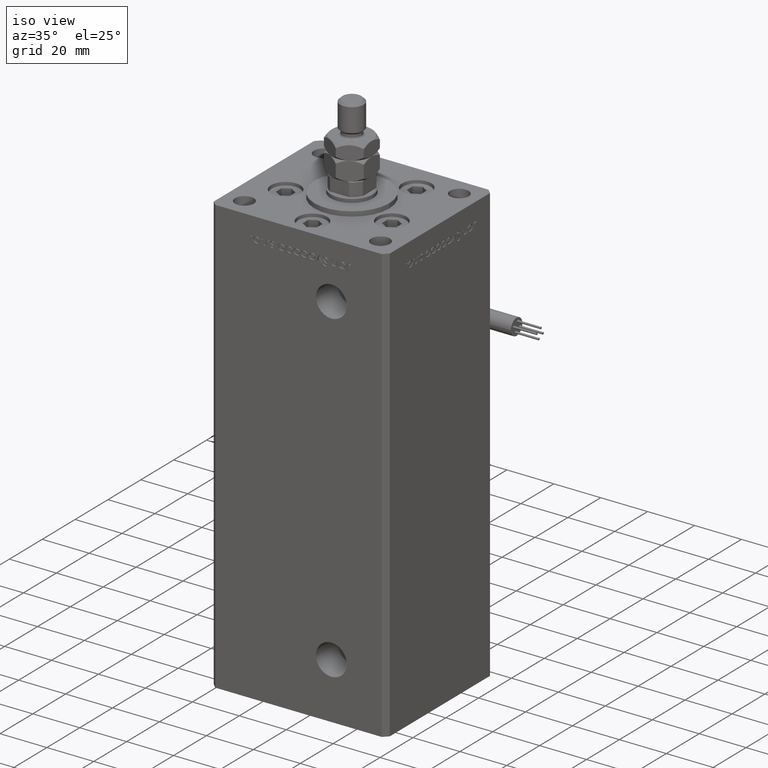
[diagram: clean part render]
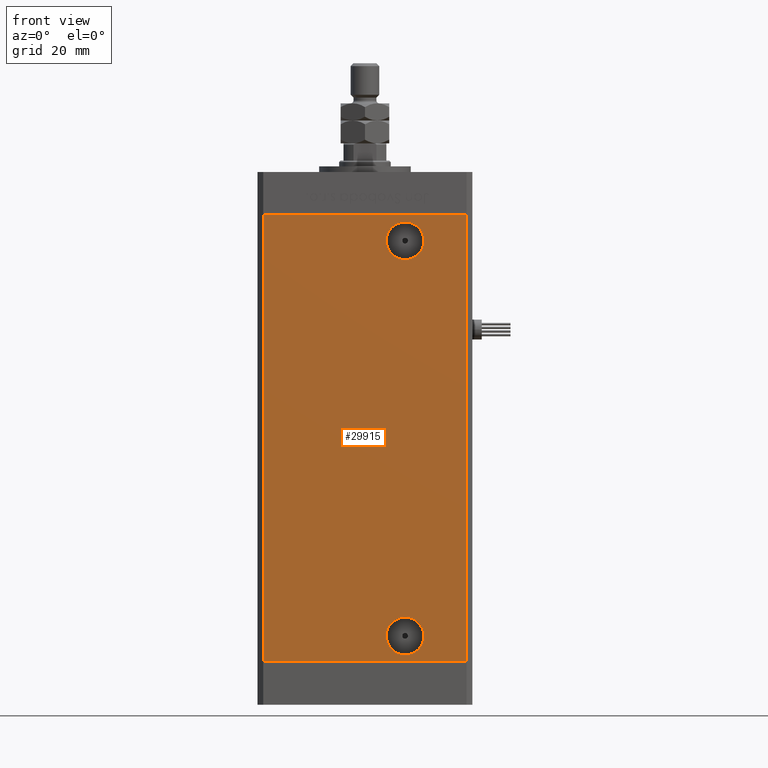
[diagram: tour spotlight — one face highlighted and labeled with its STEP entity id]
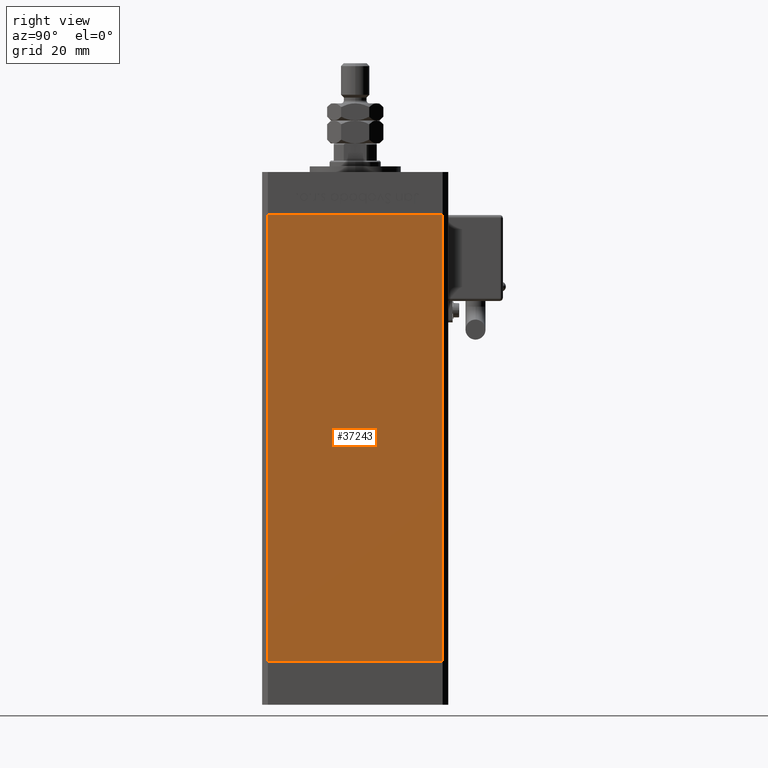
[diagram: tour spotlight — one face highlighted and labeled with its STEP entity id]
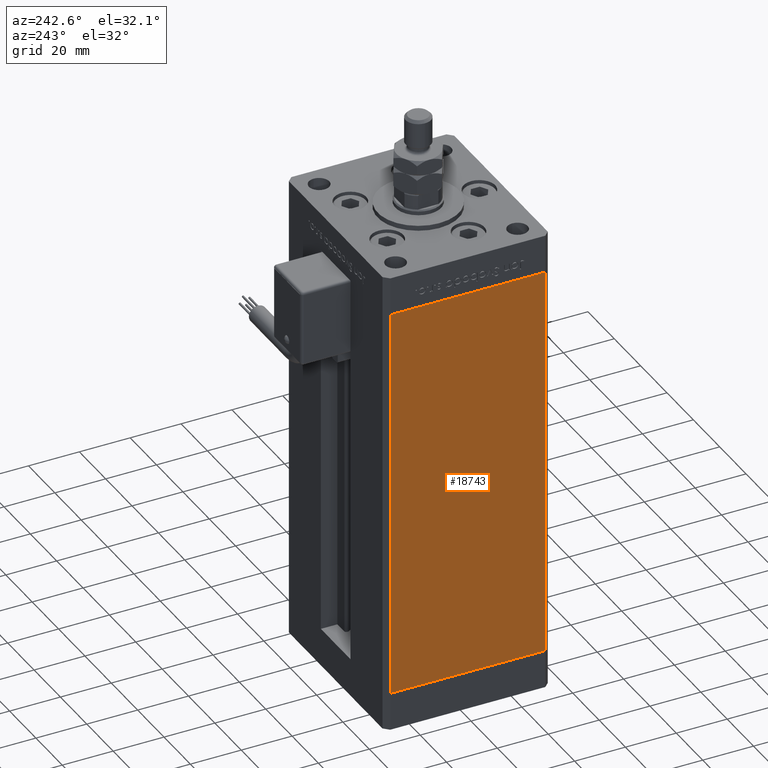
[diagram: tour spotlight — one face highlighted and labeled with its STEP entity id]
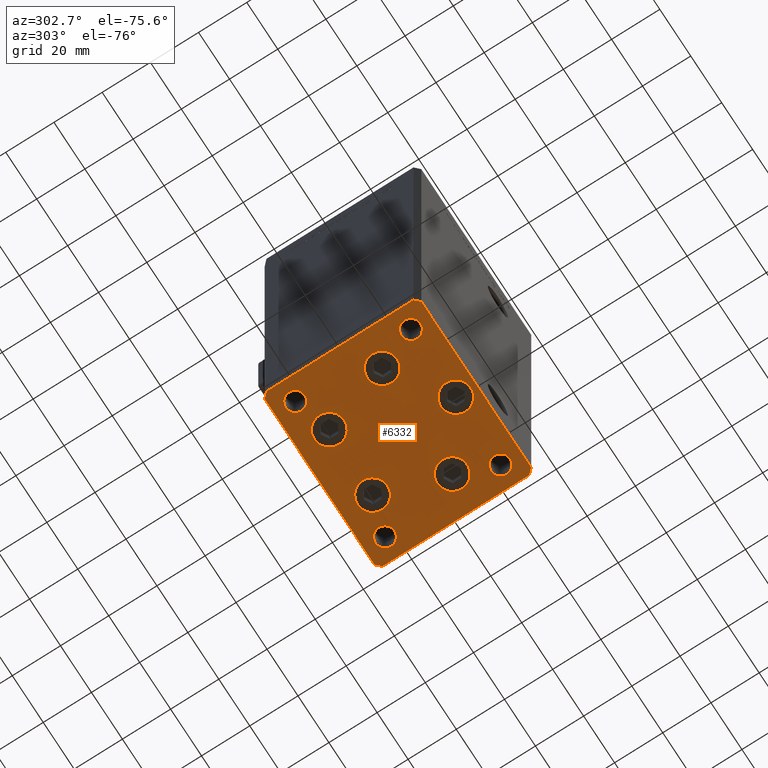
[diagram: tour spotlight — one face highlighted and labeled with its STEP entity id]
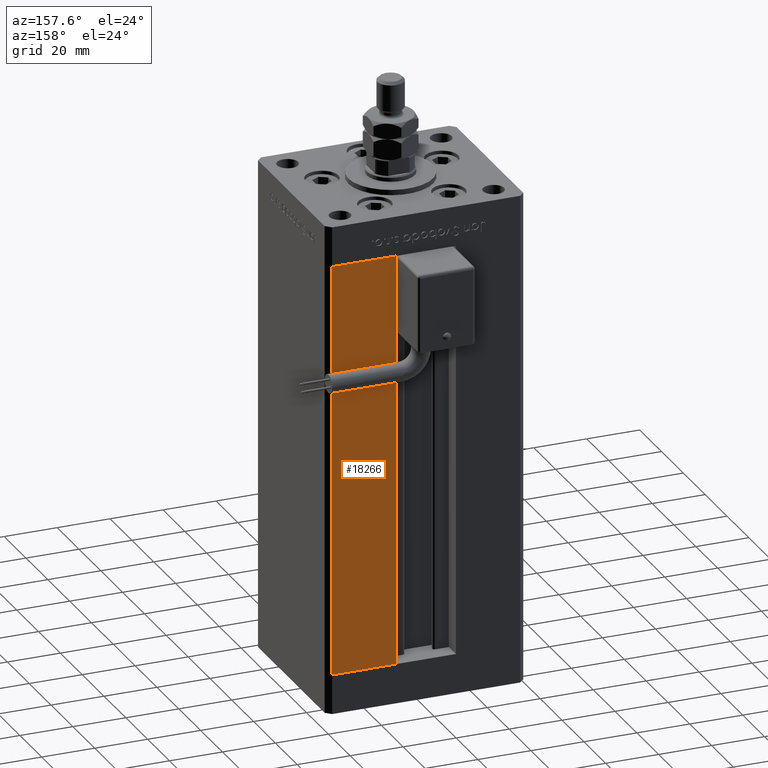
[diagram: tour spotlight — one face highlighted and labeled with its STEP entity id]
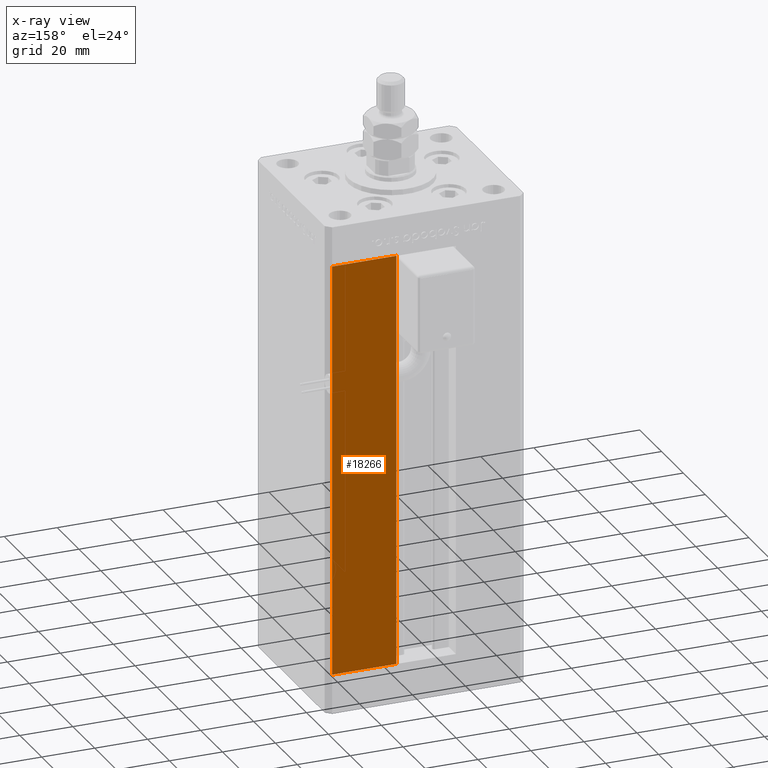
[diagram: x-ray of the same camera — body ghosted, this tour face saturated]
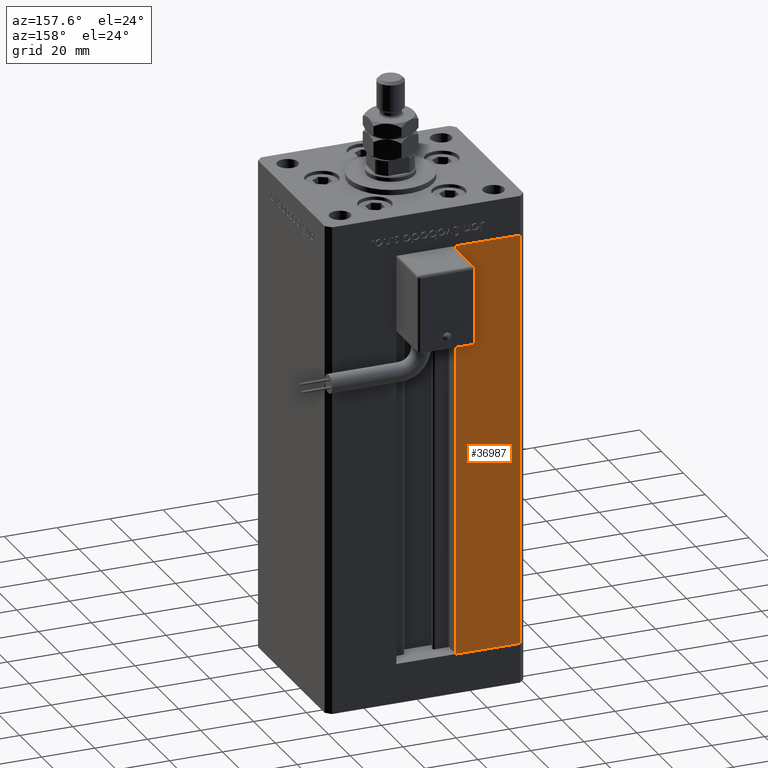
[diagram: tour spotlight — one face highlighted and labeled with its STEP entity id]
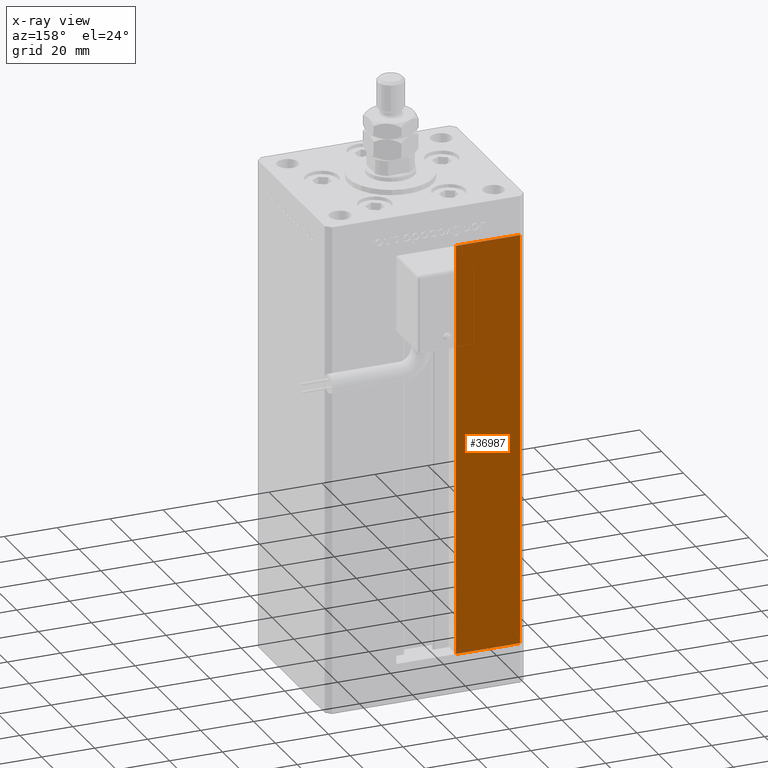
[diagram: x-ray of the same camera — body ghosted, this tour face saturated]
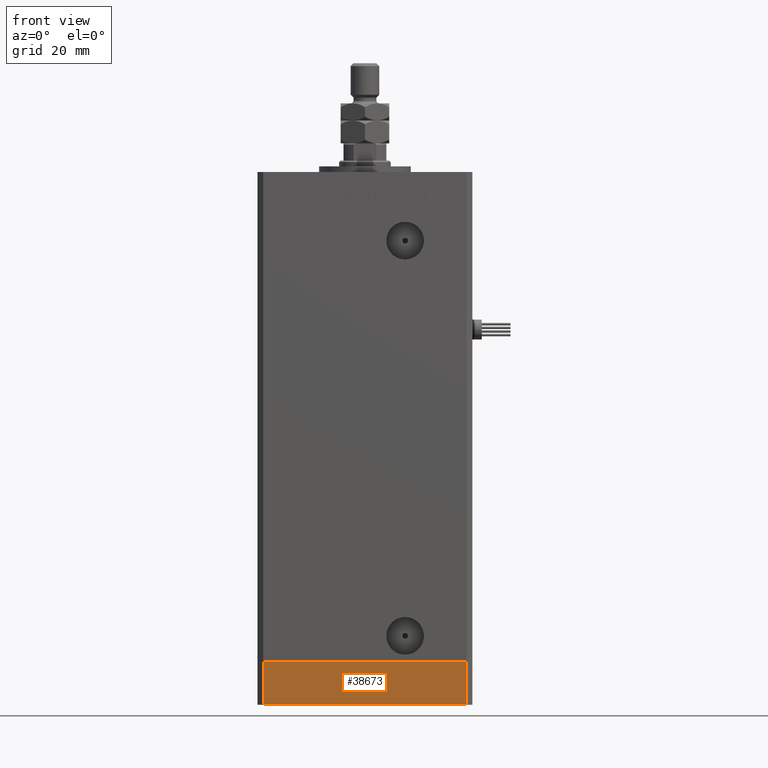
[diagram: tour spotlight — one face highlighted and labeled with its STEP entity id]
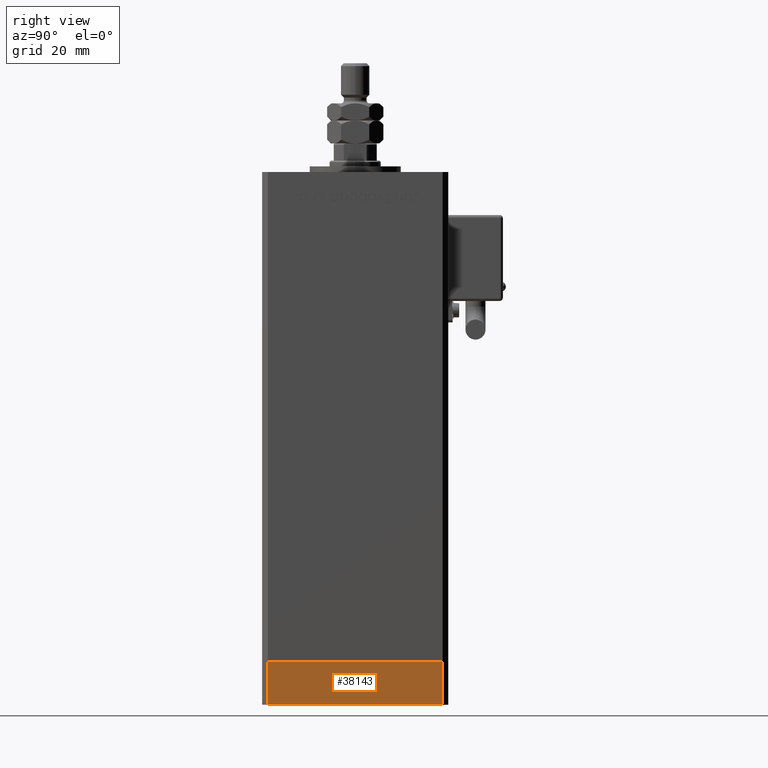
[diagram: tour spotlight — one face highlighted and labeled with its STEP entity id]
A machine part: a face-by-face anatomy tour. The part has 1334 B-rep faces; the first image is the clean iso view, then the 8 largest visible faces are spotlighted one at a time (largest first), each with its STEP entity span.

Face 1 — front view, entity #29915. In plain terms, the highlighted planar face has unit normal (0, 1, 0).
Definition (entity closure, byte-faithful):
#817 = AXIS2_PLACEMENT_3D ( 'NONE', #55035, #27536, #14600 ) ;
#1549 = VERTEX_POINT ( 'NONE', #44508 ) ;
#1891 = CARTESIAN_POINT ( 'NONE',  ( 13.99999999999997513, -32.50000000000000000, 140.4200000000000159 ) ) ;
#1982 = CARTESIAN_POINT ( 'NONE',  ( -35.49999999999999289, -32.50000000000000000, 156.0000000000000000 ) ) ;
#2479 = VERTEX_POINT ( 'NONE', #47945 ) ;
#2536 = FACE_OUTER_BOUND ( 'NONE', #17099, .T. ) ;
#2798 = LINE ( 'NONE', #10830, #24744 ) ;
#3021 = EDGE_CURVE ( 'NONE', #44574, #39022, #2798, .T. ) ;
#3028 = CARTESIAN_POINT ( 'NONE',  ( -35.49999999999999289, -32.50000000000000000, 0.000000000000000000 ) ) ;
#3066 = ORIENTED_EDGE ( 'NONE', *, *, #13359, .T. ) ;
#3118 = VECTOR ( 'NONE', #56709, 1000.000000000000000 ) ;
#3571 = CARTESIAN_POINT ( 'NONE',  ( 35.49999999999999289, -32.50000000000000000, 156.0000000000000000 ) ) ;
#3935 = CIRCLE ( 'NONE', #34148, 6.579999999999998295 ) ;
#3950 = CARTESIAN_POINT ( 'NONE',  ( -35.49999999999999289, -32.50000000000000000, 156.0000000000000000 ) ) ;
#4577 = CARTESIAN_POINT ( 'NONE',  ( 13.99999999999999112, -32.50000000000000000, 15.58000000000000718 ) ) ;
#5752 = AXIS2_PLACEMENT_3D ( 'NONE', #17000, #43106, #56303 ) ;
#6574 = CARTESIAN_POINT ( 'NONE',  ( 13.99999999999999112, -32.50000000000000000, 9.000000000000007105 ) ) ;
#9158 = EDGE_CURVE ( 'NONE', #19921, #51169, #3935, .T. ) ;
#10552 = DIRECTION ( 'NONE',  ( -0.000000000000000000, -0.000000000000000000, -1.000000000000000000 ) ) ;
#10598 = ORIENTED_EDGE ( 'NONE', *, *, #38749, .T. ) ;
#10830 = CARTESIAN_POINT ( 'NONE',  ( 35.49999999999999289, -32.50000000000000000, 156.0000000000000000 ) ) ;
#10858 = PLANE ( 'NONE',  #817 ) ;
#11431 = DIRECTION ( 'NONE',  ( 0.000000000000000000, -1.000000000000000000, 0.000000000000000000 ) ) ;
#13359 = EDGE_CURVE ( 'NONE', #30774, #1549, #40811, .T. ) ;
#13890 = EDGE_LOOP ( 'NONE', ( #42626, #10598 ) ) ;
#14600 = DIRECTION ( 'NONE',  ( 0.000000000000000000, -0.000000000000000000, 1.000000000000000000 ) ) ;
#16917 = CARTESIAN_POINT ( 'NONE',  ( 13.99999999999999112, -32.50000000000000000, 9.000000000000007105 ) ) ;
#17000 = CARTESIAN_POINT ( 'NONE',  ( 13.99999999999997513, -32.50000000000000000, 147.0000000000000284 ) ) ;
#17099 = EDGE_LOOP ( 'NONE', ( #45086, #39675, #21524, #3066 ) ) ;
#19458 = CIRCLE ( 'NONE', #5752, 6.580000000000002736 ) ;
#19921 = VERTEX_POINT ( 'NONE', #35005 ) ;
#20354 = CIRCLE ( 'NONE', #48745, 6.580000000000002736 ) ;
#21524 = ORIENTED_EDGE ( 'NONE', *, *, #46133, .F. ) ;
#22655 = DIRECTION ( 'NONE',  ( 0.000000000000000000, 0.000000000000000000, -1.000000000000000000 ) ) ;
#24074 = DIRECTION ( 'NONE',  ( 0.000000000000000000, 0.000000000000000000, -1.000000000000000000 ) ) ;
#24258 = ORIENTED_EDGE ( 'NONE', *, *, #9158, .F. ) ;
#24744 = VECTOR ( 'NONE', #10552, 1000.000000000000000 ) ;
#26045 = LINE ( 'NONE', #3950, #3118 ) ;
#26103 = DIRECTION ( 'NONE',  ( 0.000000000000000000, -1.000000000000000000, 0.000000000000000000 ) ) ;
#27411 = EDGE_LOOP ( 'NONE', ( #24258, #31155 ) ) ;
#27536 = DIRECTION ( 'NONE',  ( 0.000000000000000000, 1.000000000000000000, 0.000000000000000000 ) ) ;
#28203 = DIRECTION ( 'NONE',  ( -0.000000000000000000, -0.000000000000000000, -1.000000000000000000 ) ) ;
#29915 = ADVANCED_FACE ( 'NONE', ( #36972, #2536, #37248 ), #10858, .F. ) ;
#30774 = VERTEX_POINT ( 'NONE', #1982 ) ;
#31155 = ORIENTED_EDGE ( 'NONE', *, *, #40602, .F. ) ;
#32405 = DIRECTION ( 'NONE',  ( -0.000000000000000000, 1.000000000000000000, -0.000000000000000000 ) ) ;
#34148 = AXIS2_PLACEMENT_3D ( 'NONE', #16917, #26103, #51359 ) ;
#34155 = CIRCLE ( 'NONE', #53408, 6.579999999999998295 ) ;
#34282 = LINE ( 'NONE', #3028, #54150 ) ;
#35005 = CARTESIAN_POINT ( 'NONE',  ( 13.99999999999999112, -32.50000000000000000, 2.420000000000009699 ) ) ;
#35009 = EDGE_CURVE ( 'NONE', #1549, #39022, #34282, .T. ) ;
#36972 = FACE_BOUND ( 'NONE', #27411, .T. ) ;
#37248 = FACE_BOUND ( 'NONE', #13890, .T. ) ;
#37526 = EDGE_CURVE ( 'NONE', #54152, #2479, #20354, .T. ) ;
#38580 = DIRECTION ( 'NONE',  ( 1.000000000000000000, 0.000000000000000000, 0.000000000000000000 ) ) ;
#38749 = EDGE_CURVE ( 'NONE', #2479, #54152, #19458, .T. ) ;
#39022 = VERTEX_POINT ( 'NONE', #49691 ) ;
#39675 = ORIENTED_EDGE ( 'NONE', *, *, #3021, .F. ) ;
#39757 = VECTOR ( 'NONE', #28203, 1000.000000000000000 ) ;
#40602 = EDGE_CURVE ( 'NONE', #51169, #19921, #34155, .T. ) ;
#40811 = LINE ( 'NONE', #44548, #39757 ) ;
#42626 = ORIENTED_EDGE ( 'NONE', *, *, #37526, .T. ) ;
#43106 = DIRECTION ( 'NONE',  ( -0.000000000000000000, 1.000000000000000000, -0.000000000000000000 ) ) ;
#44445 = CARTESIAN_POINT ( 'NONE',  ( 13.99999999999997513, -32.50000000000000000, 147.0000000000000284 ) ) ;
#44508 = CARTESIAN_POINT ( 'NONE',  ( -35.49999999999999289, -32.50000000000000000, 0.000000000000000000 ) ) ;
#44548 = CARTESIAN_POINT ( 'NONE',  ( -35.49999999999999289, -32.50000000000000000, 156.0000000000000000 ) ) ;
#44574 = VERTEX_POINT ( 'NONE', #3571 ) ;
#45086 = ORIENTED_EDGE ( 'NONE', *, *, #35009, .T. ) ;
#46133 = EDGE_CURVE ( 'NONE', #30774, #44574, #26045, .T. ) ;
#47945 = CARTESIAN_POINT ( 'NONE',  ( 13.99999999999997513, -32.50000000000000000, 153.5800000000000125 ) ) ;
#48745 = AXIS2_PLACEMENT_3D ( 'NONE', #44445, #32405, #22655 ) ;
#49691 = CARTESIAN_POINT ( 'NONE',  ( 35.49999999999999289, -32.50000000000000000, 0.000000000000000000 ) ) ;
#51169 = VERTEX_POINT ( 'NONE', #4577 ) ;
#51359 = DIRECTION ( 'NONE',  ( 0.000000000000000000, 0.000000000000000000, -1.000000000000000000 ) ) ;
#53408 = AXIS2_PLACEMENT_3D ( 'NONE', #6574, #11431, #24074 ) ;
#54150 = VECTOR ( 'NONE', #38580, 1000.000000000000000 ) ;
#54152 = VERTEX_POINT ( 'NONE', #1891 ) ;
#55035 = CARTESIAN_POINT ( 'NONE',  ( -35.49999999999999289, -32.50000000000000000, 156.0000000000000000 ) ) ;
#56303 = DIRECTION ( 'NONE',  ( 0.000000000000000000, 0.000000000000000000, -1.000000000000000000 ) ) ;
#56709 = DIRECTION ( 'NONE',  ( 1.000000000000000000, 0.000000000000000000, 0.000000000000000000 ) ) ;

Face 2 — right view, entity #37243. In plain terms, the highlighted planar face has unit normal (1, -0, 0).
Definition (entity closure, byte-faithful):
#3339 = ORIENTED_EDGE ( 'NONE', *, *, #9759, .T. ) ;
#4269 = EDGE_CURVE ( 'NONE', #19966, #17095, #42015, .T. ) ;
#6547 = VERTEX_POINT ( 'NONE', #22474 ) ;
#7131 = DIRECTION ( 'NONE',  ( -0.000000000000000000, -0.000000000000000000, -1.000000000000000000 ) ) ;
#8182 = LINE ( 'NONE', #20529, #46059 ) ;
#9759 = EDGE_CURVE ( 'NONE', #6547, #19966, #8182, .T. ) ;
#9836 = CARTESIAN_POINT ( 'NONE',  ( 37.50000000000000711, 30.50000000000000000, 156.0000000000000000 ) ) ;
#11148 = LINE ( 'NONE', #28658, #11259 ) ;
#11259 = VECTOR ( 'NONE', #7131, 1000.000000000000000 ) ;
#16715 = LINE ( 'NONE', #47696, #40833 ) ;
#17095 = VERTEX_POINT ( 'NONE', #26321 ) ;
#18447 = DIRECTION ( 'NONE',  ( 2.275047181608927644E-16, 1.000000000000000000, 0.000000000000000000 ) ) ;
#19966 = VERTEX_POINT ( 'NONE', #43327 ) ;
#20529 = CARTESIAN_POINT ( 'NONE',  ( 37.50000000000000711, 30.50000000000000000, 156.0000000000000000 ) ) ;
#21088 = DIRECTION ( 'NONE',  ( -2.275047181608927644E-16, -1.000000000000000000, 0.000000000000000000 ) ) ;
#22474 = CARTESIAN_POINT ( 'NONE',  ( 37.50000000000000711, 30.50000000000000000, 156.0000000000000000 ) ) ;
#25340 = DIRECTION ( 'NONE',  ( -2.275047181608927644E-16, -1.000000000000000000, 0.000000000000000000 ) ) ;
#25578 = EDGE_LOOP ( 'NONE', ( #28613, #46423, #3339, #35651 ) ) ;
#25813 = AXIS2_PLACEMENT_3D ( 'NONE', #9836, #39680, #18447 ) ;
#26321 = CARTESIAN_POINT ( 'NONE',  ( 37.49999999999999289, -30.50000000000000000, 0.000000000000000000 ) ) ;
#26629 = VECTOR ( 'NONE', #41739, 1000.000000000000000 ) ;
#28613 = ORIENTED_EDGE ( 'NONE', *, *, #47561, .F. ) ;
#28658 = CARTESIAN_POINT ( 'NONE',  ( 37.50000000000000711, 30.50000000000000000, 156.0000000000000000 ) ) ;
#32867 = CARTESIAN_POINT ( 'NONE',  ( 37.49999999999999289, -30.50000000000000000, 156.0000000000000000 ) ) ;
#35651 = ORIENTED_EDGE ( 'NONE', *, *, #4269, .T. ) ;
#37243 = ADVANCED_FACE ( 'NONE', ( #53729 ), #40233, .T. ) ;
#37464 = CARTESIAN_POINT ( 'NONE',  ( 37.50000000000000711, 30.50000000000000000, 0.000000000000000000 ) ) ;
#39680 = DIRECTION ( 'NONE',  ( 1.000000000000000000, -2.275047181608927644E-16, 0.000000000000000000 ) ) ;
#40233 = PLANE ( 'NONE',  #25813 ) ;
#40652 = EDGE_CURVE ( 'NONE', #6547, #40908, #11148, .T. ) ;
#40833 = VECTOR ( 'NONE', #25340, 1000.000000000000000 ) ;
#40908 = VERTEX_POINT ( 'NONE', #37464 ) ;
#41739 = DIRECTION ( 'NONE',  ( -0.000000000000000000, -0.000000000000000000, -1.000000000000000000 ) ) ;
#42015 = LINE ( 'NONE', #32867, #26629 ) ;
#43327 = CARTESIAN_POINT ( 'NONE',  ( 37.49999999999999289, -30.50000000000000000, 156.0000000000000000 ) ) ;
#46059 = VECTOR ( 'NONE', #21088, 1000.000000000000000 ) ;
#46423 = ORIENTED_EDGE ( 'NONE', *, *, #40652, .F. ) ;
#47561 = EDGE_CURVE ( 'NONE', #40908, #17095, #16715, .T. ) ;
#47696 = CARTESIAN_POINT ( 'NONE',  ( 37.50000000000000711, 30.50000000000000000, 0.000000000000000000 ) ) ;
#53729 = FACE_OUTER_BOUND ( 'NONE', #25578, .T. ) ;

Face 3 — auxiliary view, entity #18743. In plain terms, the highlighted planar face has unit normal (1, 0, 0).
Definition (entity closure, byte-faithful):
#1599 = CARTESIAN_POINT ( 'NONE',  ( -37.50000000000000711, 30.50000000000000000, 0.000000000000000000 ) ) ;
#4195 = CARTESIAN_POINT ( 'NONE',  ( -37.50000000000000711, 30.50000000000000000, 0.000000000000000000 ) ) ;
#4315 = EDGE_LOOP ( 'NONE', ( #10823, #16535, #37530, #30025 ) ) ;
#4432 = VECTOR ( 'NONE', #54212, 1000.000000000000000 ) ;
#4534 = VERTEX_POINT ( 'NONE', #10142 ) ;
#10142 = CARTESIAN_POINT ( 'NONE',  ( -37.49999999999999289, -30.50000000000000000, 0.000000000000000000 ) ) ;
#10544 = EDGE_CURVE ( 'NONE', #24593, #12290, #42469, .T. ) ;
#10823 = ORIENTED_EDGE ( 'NONE', *, *, #25688, .T. ) ;
#10846 = LINE ( 'NONE', #33789, #20514 ) ;
#12290 = VERTEX_POINT ( 'NONE', #4195 ) ;
#14682 = FACE_OUTER_BOUND ( 'NONE', #4315, .T. ) ;
#16535 = ORIENTED_EDGE ( 'NONE', *, *, #24325, .F. ) ;
#18715 = DIRECTION ( 'NONE',  ( 1.000000000000000000, 2.275047181608927644E-16, -0.000000000000000000 ) ) ;
#18743 = ADVANCED_FACE ( 'NONE', ( #14682 ), #22738, .F. ) ;
#19771 = CARTESIAN_POINT ( 'NONE',  ( -37.49999999999999289, -30.50000000000000000, 156.0000000000000000 ) ) ;
#20514 = VECTOR ( 'NONE', #37239, 1000.000000000000000 ) ;
#22738 = PLANE ( 'NONE',  #27183 ) ;
#23319 = CARTESIAN_POINT ( 'NONE',  ( -37.50000000000000711, 30.50000000000000000, 156.0000000000000000 ) ) ;
#24325 = EDGE_CURVE ( 'NONE', #52316, #4534, #53921, .T. ) ;
#24593 = VERTEX_POINT ( 'NONE', #27794 ) ;
#25688 = EDGE_CURVE ( 'NONE', #12290, #4534, #54111, .T. ) ;
#27183 = AXIS2_PLACEMENT_3D ( 'NONE', #23319, #18715, #40506 ) ;
#27794 = CARTESIAN_POINT ( 'NONE',  ( -37.50000000000000711, 30.50000000000000000, 156.0000000000000000 ) ) ;
#28006 = DIRECTION ( 'NONE',  ( 2.275047181608927644E-16, -1.000000000000000000, 0.000000000000000000 ) ) ;
#29220 = VECTOR ( 'NONE', #28006, 1000.000000000000000 ) ;
#30025 = ORIENTED_EDGE ( 'NONE', *, *, #10544, .T. ) ;
#30415 = CARTESIAN_POINT ( 'NONE',  ( -37.50000000000000711, 30.50000000000000000, 156.0000000000000000 ) ) ;
#33789 = CARTESIAN_POINT ( 'NONE',  ( -37.50000000000000711, 30.50000000000000000, 156.0000000000000000 ) ) ;
#34334 = CARTESIAN_POINT ( 'NONE',  ( -37.49999999999999289, -30.50000000000000000, 156.0000000000000000 ) ) ;
#34983 = DIRECTION ( 'NONE',  ( -0.000000000000000000, -0.000000000000000000, -1.000000000000000000 ) ) ;
#37239 = DIRECTION ( 'NONE',  ( 2.275047181608927644E-16, -1.000000000000000000, 0.000000000000000000 ) ) ;
#37530 = ORIENTED_EDGE ( 'NONE', *, *, #46067, .F. ) ;
#39669 = VECTOR ( 'NONE', #34983, 1000.000000000000000 ) ;
#40506 = DIRECTION ( 'NONE',  ( -2.275047181608927644E-16, 1.000000000000000000, 0.000000000000000000 ) ) ;
#42469 = LINE ( 'NONE', #30415, #39669 ) ;
#46067 = EDGE_CURVE ( 'NONE', #24593, #52316, #10846, .T. ) ;
#52316 = VERTEX_POINT ( 'NONE', #34334 ) ;
#53921 = LINE ( 'NONE', #19771, #4432 ) ;
#54111 = LINE ( 'NONE', #1599, #29220 ) ;
#54212 = DIRECTION ( 'NONE',  ( -0.000000000000000000, -0.000000000000000000, -1.000000000000000000 ) ) ;

Face 4 — auxiliary view, entity #6332. In plain terms, the highlighted planar face has unit normal (0, 0, -1).
Definition (entity closure, byte-faithful):
#199 = VECTOR ( 'NONE', #17117, 1000.000000000000000 ) ;
#240 = FACE_BOUND ( 'NONE', #17299, .T. ) ;
#507 = ORIENTED_EDGE ( 'NONE', *, *, #28853, .T. ) ;
#1045 = ORIENTED_EDGE ( 'NONE', *, *, #21298, .T. ) ;
#1175 = CARTESIAN_POINT ( 'NONE',  ( 33.00000000000001421, 24.00000000000000711, 0.000000000000000000 ) ) ;
#1648 = DIRECTION ( 'NONE',  ( 1.000000000000000000, 0.000000000000000000, 0.000000000000000000 ) ) ;
#1809 = DIRECTION ( 'NONE',  ( 1.000000000000000000, 0.000000000000000000, 0.000000000000000000 ) ) ;
#1920 = ORIENTED_EDGE ( 'NONE', *, *, #26101, .T. ) ;
#2318 = CARTESIAN_POINT ( 'NONE',  ( 22.62741699796951877, -8.000000000000000000, 0.000000000000000000 ) ) ;
#2601 = DIRECTION ( 'NONE',  ( 0.000000000000000000, -0.000000000000000000, -1.000000000000000000 ) ) ;
#2618 = CARTESIAN_POINT ( 'NONE',  ( -13.99106857963322703, 19.49999999999999645, 0.000000000000000000 ) ) ;
#2716 = EDGE_CURVE ( 'NONE', #32454, #26280, #45597, .T. ) ;
#2797 = DIRECTION ( 'NONE',  ( 0.000000000000000000, -0.000000000000000000, -1.000000000000000000 ) ) ;
#2844 = ORIENTED_EDGE ( 'NONE', *, *, #39561, .F. ) ;
#2879 = DIRECTION ( 'NONE',  ( 1.000000000000000000, 0.000000000000000000, 0.000000000000000000 ) ) ;
#3617 = EDGE_CURVE ( 'NONE', #34134, #56608, #53740, .T. ) ;
#3641 = DIRECTION ( 'NONE',  ( 1.000000000000000000, 0.000000000000000000, 0.000000000000000000 ) ) ;
#4476 = AXIS2_PLACEMENT_3D ( 'NONE', #5953, #40924, #31780 ) ;
#4759 = VERTEX_POINT ( 'NONE', #9223 ) ;
#5590 = CIRCLE ( 'NONE', #51364, 4.000000000000003553 ) ;
#5698 = DIRECTION ( 'NONE',  ( -0.000000000000000000, 0.000000000000000000, 1.000000000000000000 ) ) ;
#5701 = EDGE_CURVE ( 'NONE', #56608, #29592, #18443, .T. ) ;
#5847 = EDGE_LOOP ( 'NONE', ( #39460, #2844 ) ) ;
#5953 = CARTESIAN_POINT ( 'NONE',  ( -29.00000000000001066, -23.99999999999999289, 0.000000000000000000 ) ) ;
#6322 = CARTESIAN_POINT ( 'NONE',  ( -35.49999999999998579, -32.50000000000001421, 0.000000000000000000 ) ) ;
#6323 = CARTESIAN_POINT ( 'NONE',  ( -35.49999999999998579, -32.50000000000001421, 0.000000000000000000 ) ) ;
#6332 = ADVANCED_FACE ( 'NONE', ( #240, #52463, #35238, #53022, #13433, #31243, #48727, #9419, #26934, #44410 ), #22618, .T. ) ;
#6868 = EDGE_CURVE ( 'NONE', #56561, #31717, #28557, .T. ) ;
#6997 = EDGE_CURVE ( 'NONE', #28828, #32454, #53941, .T. ) ;
#7634 = EDGE_CURVE ( 'NONE', #24587, #17279, #16656, .T. ) ;
#8165 = CARTESIAN_POINT ( 'NONE',  ( -29.00000000000001066, 24.00000000000000711, 0.000000000000000000 ) ) ;
#8210 = CIRCLE ( 'NONE', #40250, 6.250000000000001776 ) ;
#8224 = ORIENTED_EDGE ( 'NONE', *, *, #5701, .T. ) ;
#8426 = EDGE_CURVE ( 'NONE', #26280, #30863, #20591, .T. ) ;
#8846 = VERTEX_POINT ( 'NONE', #29122 ) ;
#8871 = VERTEX_POINT ( 'NONE', #42592 ) ;
#9003 = AXIS2_PLACEMENT_3D ( 'NONE', #42166, #28423, #2879 ) ;
#9223 = CARTESIAN_POINT ( 'NONE',  ( -7.741068579633227031, 19.49999999999999645, 0.000000000000000000 ) ) ;
#9419 = FACE_BOUND ( 'NONE', #11230, .T. ) ;
#9806 = CARTESIAN_POINT ( 'NONE',  ( 6.250000000000002665, -24.00000000000000000, 0.000000000000000000 ) ) ;
#10051 = EDGE_LOOP ( 'NONE', ( #17452, #43867 ) ) ;
#10107 = DIRECTION ( 'NONE',  ( 1.000000000000000000, 0.000000000000000000, 0.000000000000000000 ) ) ;
#10415 = CARTESIAN_POINT ( 'NONE',  ( 37.49999999999992184, 30.50000000000001066, 0.000000000000000000 ) ) ;
#10559 = CARTESIAN_POINT ( 'NONE',  ( -33.00000000000000711, 24.00000000000000711, 0.000000000000000000 ) ) ;
#10596 = ORIENTED_EDGE ( 'NONE', *, *, #8426, .T. ) ;
#10651 = CARTESIAN_POINT ( 'NONE',  ( 35.49999999999992184, 32.50000000000000711, 0.000000000000000000 ) ) ;
#11230 = EDGE_LOOP ( 'NONE', ( #45572, #37834 ) ) ;
#12441 = DIRECTION ( 'NONE',  ( 1.000000000000000000, 0.000000000000000000, 0.000000000000000000 ) ) ;
#12877 = EDGE_CURVE ( 'NONE', #30863, #34134, #24889, .T. ) ;
#13433 = FACE_BOUND ( 'NONE', #20759, .T. ) ;
#13640 = VECTOR ( 'NONE', #51428, 1000.000000000000000 ) ;
#13722 = CIRCLE ( 'NONE', #21057, 6.250000000000001776 ) ;
#14077 = DIRECTION ( 'NONE',  ( 1.000000000000000000, 0.000000000000000000, 0.000000000000000000 ) ) ;
#14133 = CARTESIAN_POINT ( 'NONE',  ( -6.249999999999997335, -24.00000000000000000, 0.000000000000000000 ) ) ;
#14531 = EDGE_CURVE ( 'NONE', #8846, #15904, #22271, .T. ) ;
#15136 = EDGE_CURVE ( 'NONE', #17279, #24587, #45193, .T. ) ;
#15235 = AXIS2_PLACEMENT_3D ( 'NONE', #2618, #49977, #54834 ) ;
#15364 = CIRCLE ( 'NONE', #53829, 4.000000000000003553 ) ;
#15365 = DIRECTION ( 'NONE',  ( 0.000000000000000000, -0.000000000000000000, -1.000000000000000000 ) ) ;
#15494 = EDGE_LOOP ( 'NONE', ( #47283, #37491 ) ) ;
#15596 = VECTOR ( 'NONE', #27926, 999.9999999999998863 ) ;
#15652 = DIRECTION ( 'NONE',  ( 1.000000000000000000, 0.000000000000000000, 0.000000000000000000 ) ) ;
#15832 = AXIS2_PLACEMENT_3D ( 'NONE', #24736, #42214, #20420 ) ;
#15904 = VERTEX_POINT ( 'NONE', #52753 ) ;
#16599 = ORIENTED_EDGE ( 'NONE', *, *, #53812, .T. ) ;
#16656 = CIRCLE ( 'NONE', #55110, 3.999999999999996447 ) ;
#17117 = DIRECTION ( 'NONE',  ( 0.7071067811865487940, 0.7071067811865463515, 0.000000000000000000 ) ) ;
#17279 = VERTEX_POINT ( 'NONE', #46625 ) ;
#17299 = EDGE_LOOP ( 'NONE', ( #42986, #32631 ) ) ;
#17452 = ORIENTED_EDGE ( 'NONE', *, *, #23914, .T. ) ;
#17589 = CARTESIAN_POINT ( 'NONE',  ( 35.49999999999992184, 32.50000000000000711, 0.000000000000000000 ) ) ;
#17633 = DIRECTION ( 'NONE',  ( 1.000000000000000000, 0.000000000000000000, 0.000000000000000000 ) ) ;
#17685 = CARTESIAN_POINT ( 'NONE',  ( -35.50000000000002842, 32.49999999999999289, 0.000000000000000000 ) ) ;
#18019 = CARTESIAN_POINT ( 'NONE',  ( -13.99106857963322703, 19.49999999999999645, 0.000000000000000000 ) ) ;
#18270 = CARTESIAN_POINT ( 'NONE',  ( 35.50000000000000711, -32.50000000000000711, 0.000000000000000000 ) ) ;
#18286 = CARTESIAN_POINT ( 'NONE',  ( -16.37741699796951877, -8.000000000000005329, 0.000000000000000000 ) ) ;
#18443 = LINE ( 'NONE', #17589, #35832 ) ;
#18809 = EDGE_CURVE ( 'NONE', #4759, #19910, #34490, .T. ) ;
#19286 = AXIS2_PLACEMENT_3D ( 'NONE', #23707, #15365, #15652 ) ;
#19379 = CARTESIAN_POINT ( 'NONE',  ( -22.62741699796951877, -8.000000000000005329, 0.000000000000000000 ) ) ;
#19813 = DIRECTION ( 'NONE',  ( 1.000000000000000000, 0.000000000000000000, 0.000000000000000000 ) ) ;
#19910 = VERTEX_POINT ( 'NONE', #43604 ) ;
#19990 = CIRCLE ( 'NONE', #52055, 4.000000000000003553 ) ;
#20272 = AXIS2_PLACEMENT_3D ( 'NONE', #40102, #5698, #1648 ) ;
#20420 = DIRECTION ( 'NONE',  ( 1.000000000000000000, 0.000000000000000000, 0.000000000000000000 ) ) ;
#20512 = VECTOR ( 'NONE', #33765, 1000.000000000000000 ) ;
#20591 = LINE ( 'NONE', #56146, #199 ) ;
#20759 = EDGE_LOOP ( 'NONE', ( #1045, #507 ) ) ;
#20850 = CARTESIAN_POINT ( 'NONE',  ( 37.50000000000001421, -30.50000000000000711, 0.000000000000000000 ) ) ;
#20931 = CIRCLE ( 'NONE', #9003, 6.250000000000000000 ) ;
#21057 = AXIS2_PLACEMENT_3D ( 'NONE', #19379, #24259, #32857 ) ;
#21298 = EDGE_CURVE ( 'NONE', #27755, #48143, #23567, .T. ) ;
#21693 = CARTESIAN_POINT ( 'NONE',  ( -37.49999999999998579, -30.50000000000001421, 0.000000000000000000 ) ) ;
#21735 = VERTEX_POINT ( 'NONE', #51122 ) ;
#21930 = CARTESIAN_POINT ( 'NONE',  ( 29.00000000000001066, -23.99999999999999289, 0.000000000000000000 ) ) ;
#22018 = EDGE_CURVE ( 'NONE', #23395, #33243, #15364, .T. ) ;
#22271 = CIRCLE ( 'NONE', #15832, 4.000000000000000000 ) ;
#22387 = CARTESIAN_POINT ( 'NONE',  ( 25.00000000000000711, -23.99999999999999289, 0.000000000000000000 ) ) ;
#22618 = PLANE ( 'NONE',  #20272 ) ;
#23395 = VERTEX_POINT ( 'NONE', #22387 ) ;
#23567 = CIRCLE ( 'NONE', #47387, 6.250000000000001776 ) ;
#23707 = CARTESIAN_POINT ( 'NONE',  ( 13.99106857963322348, 19.50000000000000000, 0.000000000000000000 ) ) ;
#23914 = EDGE_CURVE ( 'NONE', #33243, #23395, #19990, .T. ) ;
#23976 = VERTEX_POINT ( 'NONE', #29024 ) ;
#24060 = CIRCLE ( 'NONE', #47880, 4.000000000000003553 ) ;
#24259 = DIRECTION ( 'NONE',  ( 0.000000000000000000, -0.000000000000000000, -1.000000000000000000 ) ) ;
#24587 = VERTEX_POINT ( 'NONE', #10559 ) ;
#24736 = CARTESIAN_POINT ( 'NONE',  ( -29.00000000000001066, -23.99999999999999289, 0.000000000000000000 ) ) ;
#24889 = LINE ( 'NONE', #20850, #20512 ) ;
#25167 = DIRECTION ( 'NONE',  ( 0.000000000000000000, -0.000000000000000000, -1.000000000000000000 ) ) ;
#25508 = CARTESIAN_POINT ( 'NONE',  ( -22.62741699796951877, -8.000000000000005329, 0.000000000000000000 ) ) ;
#25665 = DIRECTION ( 'NONE',  ( -0.000000000000000000, 0.000000000000000000, 1.000000000000000000 ) ) ;
#25930 = VERTEX_POINT ( 'NONE', #27093 ) ;
#26101 = EDGE_CURVE ( 'NONE', #44227, #28828, #52270, .T. ) ;
#26280 = VERTEX_POINT ( 'NONE', #18270 ) ;
#26460 = CIRCLE ( 'NONE', #4476, 4.000000000000000000 ) ;
#26474 = CARTESIAN_POINT ( 'NONE',  ( 29.00000000000001066, 24.00000000000000711, 0.000000000000000000 ) ) ;
#26934 = FACE_OUTER_BOUND ( 'NONE', #49345, .T. ) ;
#26935 = DIRECTION ( 'NONE',  ( 0.000000000000000000, -0.000000000000000000, -1.000000000000000000 ) ) ;
#27017 = EDGE_CURVE ( 'NONE', #23976, #25930, #8210, .T. ) ;
#27093 = CARTESIAN_POINT ( 'NONE',  ( 16.37741699796951877, -8.000000000000000000, 0.000000000000000000 ) ) ;
#27622 = CARTESIAN_POINT ( 'NONE',  ( 29.00000000000001066, -23.99999999999999289, 0.000000000000000000 ) ) ;
#27755 = VERTEX_POINT ( 'NONE', #46444 ) ;
#27926 = DIRECTION ( 'NONE',  ( -0.7071067811865482389, 0.7071067811865469066, 0.000000000000000000 ) ) ;
#28423 = DIRECTION ( 'NONE',  ( 0.000000000000000000, -0.000000000000000000, -1.000000000000000000 ) ) ;
#28479 = CIRCLE ( 'NONE', #19286, 6.250000000000000000 ) ;
#28557 = CIRCLE ( 'NONE', #41386, 6.250000000000000000 ) ;
#28828 = VERTEX_POINT ( 'NONE', #21693 ) ;
#28853 = EDGE_CURVE ( 'NONE', #48143, #27755, #13722, .T. ) ;
#29024 = CARTESIAN_POINT ( 'NONE',  ( 28.87741699796952233, -8.000000000000000000, 0.000000000000000000 ) ) ;
#29122 = CARTESIAN_POINT ( 'NONE',  ( -25.00000000000001066, -23.99999999999999289, 0.000000000000000000 ) ) ;
#29592 = VERTEX_POINT ( 'NONE', #45912 ) ;
#29842 = EDGE_LOOP ( 'NONE', ( #16599, #54817 ) ) ;
#30036 = AXIS2_PLACEMENT_3D ( 'NONE', #18019, #26935, #56470 ) ;
#30241 = EDGE_CURVE ( 'NONE', #15904, #8846, #26460, .T. ) ;
#30477 = CARTESIAN_POINT ( 'NONE',  ( -37.50000000000001421, 30.49999999999998579, 0.000000000000000000 ) ) ;
#30559 = VECTOR ( 'NONE', #47530, 1000.000000000000000 ) ;
#30748 = CARTESIAN_POINT ( 'NONE',  ( 33.00000000000001421, -23.99999999999999289, 0.000000000000000000 ) ) ;
#30789 = DIRECTION ( 'NONE',  ( 1.000000000000000000, 0.000000000000000000, 0.000000000000000000 ) ) ;
#30863 = VERTEX_POINT ( 'NONE', #41277 ) ;
#31108 = DIRECTION ( 'NONE',  ( 1.000000000000000000, 0.000000000000000000, 0.000000000000000000 ) ) ;
#31243 = FACE_BOUND ( 'NONE', #5847, .T. ) ;
#31717 = VERTEX_POINT ( 'NONE', #14133 ) ;
#31780 = DIRECTION ( 'NONE',  ( 1.000000000000000000, 0.000000000000000000, 0.000000000000000000 ) ) ;
#32032 = CARTESIAN_POINT ( 'NONE',  ( -37.50000000000001421, 30.49999999999998579, 0.000000000000000000 ) ) ;
#32093 = CIRCLE ( 'NONE', #39393, 6.250000000000001776 ) ;
#32434 = DIRECTION ( 'NONE',  ( 1.000000000000000000, 9.773090005503140331E-17, 0.000000000000000000 ) ) ;
#32454 = VERTEX_POINT ( 'NONE', #6322 ) ;
#32631 = ORIENTED_EDGE ( 'NONE', *, *, #18809, .T. ) ;
#32769 = CIRCLE ( 'NONE', #30036, 6.250000000000000000 ) ;
#32857 = DIRECTION ( 'NONE',  ( 1.000000000000000000, 0.000000000000000000, 0.000000000000000000 ) ) ;
#32967 = VECTOR ( 'NONE', #32434, 1000.000000000000000 ) ;
#32971 = EDGE_CURVE ( 'NONE', #25930, #23976, #32093, .T. ) ;
#33243 = VERTEX_POINT ( 'NONE', #30748 ) ;
#33270 = DIRECTION ( 'NONE',  ( 0.7071067811865474617, -0.7071067811865474617, 0.000000000000000000 ) ) ;
#33765 = DIRECTION ( 'NONE',  ( -1.478780668045802821E-15, 1.000000000000000000, 0.000000000000000000 ) ) ;
#34051 = CARTESIAN_POINT ( 'NONE',  ( 22.62741699796951877, -8.000000000000000000, 0.000000000000000000 ) ) ;
#34134 = VERTEX_POINT ( 'NONE', #39414 ) ;
#34309 = EDGE_CURVE ( 'NONE', #50119, #8871, #5590, .T. ) ;
#34391 = DIRECTION ( 'NONE',  ( 0.000000000000000000, -0.000000000000000000, -1.000000000000000000 ) ) ;
#34490 = CIRCLE ( 'NONE', #15235, 6.250000000000000000 ) ;
#34775 = EDGE_CURVE ( 'NONE', #21735, #47336, #28479, .T. ) ;
#35238 = FACE_BOUND ( 'NONE', #42779, .T. ) ;
#35832 = VECTOR ( 'NONE', #53451, 1000.000000000000000 ) ;
#35978 = DIRECTION ( 'NONE',  ( 0.000000000000000000, -0.000000000000000000, -1.000000000000000000 ) ) ;
#36002 = ORIENTED_EDGE ( 'NONE', *, *, #3617, .T. ) ;
#36774 = EDGE_CURVE ( 'NONE', #47336, #21735, #45933, .T. ) ;
#37491 = ORIENTED_EDGE ( 'NONE', *, *, #34775, .T. ) ;
#37834 = ORIENTED_EDGE ( 'NONE', *, *, #7634, .F. ) ;
#39393 = AXIS2_PLACEMENT_3D ( 'NONE', #34051, #2797, #3641 ) ;
#39414 = CARTESIAN_POINT ( 'NONE',  ( 37.49999999999992184, 30.50000000000001066, 0.000000000000000000 ) ) ;
#39460 = ORIENTED_EDGE ( 'NONE', *, *, #34309, .F. ) ;
#39561 = EDGE_CURVE ( 'NONE', #8871, #50119, #24060, .T. ) ;
#40102 = CARTESIAN_POINT ( 'NONE',  ( 0.000000000000000000, 0.000000000000000000, 0.000000000000000000 ) ) ;
#40250 = AXIS2_PLACEMENT_3D ( 'NONE', #2318, #2601, #19813 ) ;
#40924 = DIRECTION ( 'NONE',  ( 0.000000000000000000, -0.000000000000000000, -1.000000000000000000 ) ) ;
#41277 = CARTESIAN_POINT ( 'NONE',  ( 37.50000000000001421, -30.50000000000000711, 0.000000000000000000 ) ) ;
#41302 = CARTESIAN_POINT ( 'NONE',  ( -37.49999999999998579, -30.50000000000001421, 0.000000000000000000 ) ) ;
#41386 = AXIS2_PLACEMENT_3D ( 'NONE', #53392, #52814, #14077 ) ;
#41387 = DIRECTION ( 'NONE',  ( -0.000000000000000000, 0.000000000000000000, 1.000000000000000000 ) ) ;
#42166 = CARTESIAN_POINT ( 'NONE',  ( 2.939152317953647500E-15, -24.00000000000000000, 0.000000000000000000 ) ) ;
#42214 = DIRECTION ( 'NONE',  ( 0.000000000000000000, -0.000000000000000000, -1.000000000000000000 ) ) ;
#42358 = DIRECTION ( 'NONE',  ( 1.000000000000000000, 0.000000000000000000, 0.000000000000000000 ) ) ;
#42592 = CARTESIAN_POINT ( 'NONE',  ( 25.00000000000000711, 24.00000000000000711, 0.000000000000000000 ) ) ;
#42779 = EDGE_LOOP ( 'NONE', ( #46976, #46521 ) ) ;
#42986 = ORIENTED_EDGE ( 'NONE', *, *, #52035, .T. ) ;
#43133 = DIRECTION ( 'NONE',  ( -0.000000000000000000, 0.000000000000000000, 1.000000000000000000 ) ) ;
#43179 = ORIENTED_EDGE ( 'NONE', *, *, #44093, .T. ) ;
#43604 = CARTESIAN_POINT ( 'NONE',  ( -20.24106857963322881, 19.49999999999999645, 0.000000000000000000 ) ) ;
#43867 = ORIENTED_EDGE ( 'NONE', *, *, #22018, .T. ) ;
#44093 = EDGE_CURVE ( 'NONE', #29592, #44227, #56140, .T. ) ;
#44227 = VERTEX_POINT ( 'NONE', #32032 ) ;
#44410 = FACE_BOUND ( 'NONE', #46545, .T. ) ;
#44812 = DIRECTION ( 'NONE',  ( 0.000000000000000000, -0.000000000000000000, -1.000000000000000000 ) ) ;
#44974 = ORIENTED_EDGE ( 'NONE', *, *, #12877, .T. ) ;
#45038 = VECTOR ( 'NONE', #33270, 1000.000000000000114 ) ;
#45193 = CIRCLE ( 'NONE', #56214, 3.999999999999996447 ) ;
#45572 = ORIENTED_EDGE ( 'NONE', *, *, #15136, .F. ) ;
#45597 = LINE ( 'NONE', #6323, #32967 ) ;
#45912 = CARTESIAN_POINT ( 'NONE',  ( -35.50000000000002842, 32.49999999999999289, 0.000000000000000000 ) ) ;
#45933 = CIRCLE ( 'NONE', #55119, 6.250000000000000000 ) ;
#46441 = ORIENTED_EDGE ( 'NONE', *, *, #6997, .T. ) ;
#46444 = CARTESIAN_POINT ( 'NONE',  ( -28.87741699796952233, -8.000000000000005329, 0.000000000000000000 ) ) ;
#46521 = ORIENTED_EDGE ( 'NONE', *, *, #27017, .T. ) ;
#46545 = EDGE_LOOP ( 'NONE', ( #55846, #53802 ) ) ;
#46625 = CARTESIAN_POINT ( 'NONE',  ( -25.00000000000001421, 24.00000000000000711, 0.000000000000000000 ) ) ;
#46656 = CARTESIAN_POINT ( 'NONE',  ( 13.99106857963322348, 19.50000000000000000, 0.000000000000000000 ) ) ;
#46976 = ORIENTED_EDGE ( 'NONE', *, *, #32971, .T. ) ;
#47283 = ORIENTED_EDGE ( 'NONE', *, *, #36774, .T. ) ;
#47336 = VERTEX_POINT ( 'NONE', #48624 ) ;
#47387 = AXIS2_PLACEMENT_3D ( 'NONE', #25508, #34391, #47582 ) ;
#47530 = DIRECTION ( 'NONE',  ( -0.7071067811865426878, -0.7071067811865524577, 0.000000000000000000 ) ) ;
#47582 = DIRECTION ( 'NONE',  ( 1.000000000000000000, 0.000000000000000000, 0.000000000000000000 ) ) ;
#47880 = AXIS2_PLACEMENT_3D ( 'NONE', #26474, #47995, #30789 ) ;
#47995 = DIRECTION ( 'NONE',  ( -0.000000000000000000, 0.000000000000000000, 1.000000000000000000 ) ) ;
#48143 = VERTEX_POINT ( 'NONE', #18286 ) ;
#48624 = CARTESIAN_POINT ( 'NONE',  ( 7.741068579633223479, 19.50000000000000000, 0.000000000000000000 ) ) ;
#48727 = FACE_BOUND ( 'NONE', #10051, .T. ) ;
#49345 = EDGE_LOOP ( 'NONE', ( #46441, #51699, #10596, #44974, #36002, #8224, #43179, #1920 ) ) ;
#49977 = DIRECTION ( 'NONE',  ( 0.000000000000000000, -0.000000000000000000, -1.000000000000000000 ) ) ;
#50119 = VERTEX_POINT ( 'NONE', #1175 ) ;
#51122 = CARTESIAN_POINT ( 'NONE',  ( 20.24106857963322526, 19.50000000000000000, 0.000000000000000000 ) ) ;
#51364 = AXIS2_PLACEMENT_3D ( 'NONE', #54588, #41387, #1809 ) ;
#51428 = DIRECTION ( 'NONE',  ( 4.550094363217855288E-16, -1.000000000000000000, 0.000000000000000000 ) ) ;
#51699 = ORIENTED_EDGE ( 'NONE', *, *, #2716, .T. ) ;
#52028 = CARTESIAN_POINT ( 'NONE',  ( -29.00000000000001066, 24.00000000000000711, 0.000000000000000000 ) ) ;
#52035 = EDGE_CURVE ( 'NONE', #19910, #4759, #32769, .T. ) ;
#52055 = AXIS2_PLACEMENT_3D ( 'NONE', #27622, #44812, #10107 ) ;
#52270 = LINE ( 'NONE', #30477, #13640 ) ;
#52463 = FACE_BOUND ( 'NONE', #15494, .T. ) ;
#52753 = CARTESIAN_POINT ( 'NONE',  ( -33.00000000000000711, -23.99999999999999289, 0.000000000000000000 ) ) ;
#52814 = DIRECTION ( 'NONE',  ( 0.000000000000000000, -0.000000000000000000, -1.000000000000000000 ) ) ;
#53022 = FACE_BOUND ( 'NONE', #29842, .T. ) ;
#53392 = CARTESIAN_POINT ( 'NONE',  ( 2.939152317953647500E-15, -24.00000000000000000, 0.000000000000000000 ) ) ;
#53451 = DIRECTION ( 'NONE',  ( -1.000000000000000000, -1.954618001100629052E-16, 0.000000000000000000 ) ) ;
#53740 = LINE ( 'NONE', #10415, #15596 ) ;
#53802 = ORIENTED_EDGE ( 'NONE', *, *, #30241, .T. ) ;
#53812 = EDGE_CURVE ( 'NONE', #31717, #56561, #20931, .T. ) ;
#53829 = AXIS2_PLACEMENT_3D ( 'NONE', #21930, #35978, #17633 ) ;
#53941 = LINE ( 'NONE', #41302, #45038 ) ;
#54588 = CARTESIAN_POINT ( 'NONE',  ( 29.00000000000001066, 24.00000000000000711, 0.000000000000000000 ) ) ;
#54817 = ORIENTED_EDGE ( 'NONE', *, *, #6868, .T. ) ;
#54834 = DIRECTION ( 'NONE',  ( 1.000000000000000000, 0.000000000000000000, 0.000000000000000000 ) ) ;
#55110 = AXIS2_PLACEMENT_3D ( 'NONE', #8165, #25665, #31108 ) ;
#55119 = AXIS2_PLACEMENT_3D ( 'NONE', #46656, #25167, #42358 ) ;
#55846 = ORIENTED_EDGE ( 'NONE', *, *, #14531, .T. ) ;
#56140 = LINE ( 'NONE', #17685, #30559 ) ;
#56146 = CARTESIAN_POINT ( 'NONE',  ( 35.50000000000000711, -32.50000000000000711, 0.000000000000000000 ) ) ;
#56214 = AXIS2_PLACEMENT_3D ( 'NONE', #52028, #43133, #12441 ) ;
#56470 = DIRECTION ( 'NONE',  ( 1.000000000000000000, 0.000000000000000000, 0.000000000000000000 ) ) ;
#56561 = VERTEX_POINT ( 'NONE', #9806 ) ;
#56608 = VERTEX_POINT ( 'NONE', #10651 ) ;

Face 5 — auxiliary view, entity #18266. An x-ray twin of the same camera follows (body ghosted, this face saturated) — the face is partly hidden behind the body. In plain terms, the highlighted planar face has unit normal (0, -1, 0).
Definition (entity closure, byte-faithful):
#1057 = CARTESIAN_POINT ( 'NONE',  ( 35.50000000000000000, 32.49999999999999289, 156.0000000000000000 ) ) ;
#3598 = DIRECTION ( 'NONE',  ( -0.000000000000000000, -0.000000000000000000, -1.000000000000000000 ) ) ;
#3978 = VECTOR ( 'NONE', #3598, 1000.000000000000000 ) ;
#4989 = EDGE_LOOP ( 'NONE', ( #7936, #9691, #11641, #44940 ) ) ;
#5603 = LINE ( 'NONE', #9893, #25885 ) ;
#7907 = CARTESIAN_POINT ( 'NONE',  ( 35.50000000000000000, 32.49999999999999289, 156.0000000000000000 ) ) ;
#7936 = ORIENTED_EDGE ( 'NONE', *, *, #39352, .T. ) ;
#7950 = VERTEX_POINT ( 'NONE', #49091 ) ;
#8891 = DIRECTION ( 'NONE',  ( 0.000000000000000000, -1.000000000000000000, 0.000000000000000000 ) ) ;
#9691 = ORIENTED_EDGE ( 'NONE', *, *, #17135, .T. ) ;
#9743 = FACE_OUTER_BOUND ( 'NONE', #4989, .T. ) ;
#9893 = CARTESIAN_POINT ( 'NONE',  ( -11.25000000000000178, 32.49999999999999289, 0.000000000000000000 ) ) ;
#10587 = DIRECTION ( 'NONE',  ( 1.000000000000000000, 0.000000000000000000, 0.000000000000000000 ) ) ;
#10812 = EDGE_CURVE ( 'NONE', #22536, #43923, #46914, .T. ) ;
#11641 = ORIENTED_EDGE ( 'NONE', *, *, #37535, .T. ) ;
#13306 = AXIS2_PLACEMENT_3D ( 'NONE', #31286, #8891, #44449 ) ;
#13759 = LINE ( 'NONE', #40428, #24018 ) ;
#17135 = EDGE_CURVE ( 'NONE', #7950, #51050, #43522, .T. ) ;
#18266 = ADVANCED_FACE ( 'NONE', ( #9743 ), #27253, .F. ) ;
#21454 = DIRECTION ( 'NONE',  ( -0.000000000000000000, -0.000000000000000000, 1.000000000000000000 ) ) ;
#22536 = VERTEX_POINT ( 'NONE', #1057 ) ;
#24018 = VECTOR ( 'NONE', #10587, 1000.000000000000000 ) ;
#25885 = VECTOR ( 'NONE', #44596, 1000.000000000000000 ) ;
#27253 = PLANE ( 'NONE',  #13306 ) ;
#29485 = CARTESIAN_POINT ( 'NONE',  ( 35.50000000000000000, 32.49999999999999289, 0.000000000000000000 ) ) ;
#31286 = CARTESIAN_POINT ( 'NONE',  ( -11.25000000000000178, 32.49999999999999289, 156.0000000000000000 ) ) ;
#37535 = EDGE_CURVE ( 'NONE', #51050, #22536, #13759, .T. ) ;
#38804 = VECTOR ( 'NONE', #21454, 1000.000000000000000 ) ;
#39352 = EDGE_CURVE ( 'NONE', #43923, #7950, #5603, .T. ) ;
#39798 = CARTESIAN_POINT ( 'NONE',  ( 11.25000000000000178, 32.49999999999999289, 0.000000000000000000 ) ) ;
#40428 = CARTESIAN_POINT ( 'NONE',  ( -11.25000000000000178, 32.49999999999999289, 156.0000000000000000 ) ) ;
#42461 = CARTESIAN_POINT ( 'NONE',  ( 11.24999999999999467, 32.49999999999999289, 156.0000000000000000 ) ) ;
#43522 = LINE ( 'NONE', #39798, #38804 ) ;
#43923 = VERTEX_POINT ( 'NONE', #29485 ) ;
#44449 = DIRECTION ( 'NONE',  ( 0.000000000000000000, -0.000000000000000000, -1.000000000000000000 ) ) ;
#44596 = DIRECTION ( 'NONE',  ( -1.000000000000000000, 0.000000000000000000, 0.000000000000000000 ) ) ;
#44940 = ORIENTED_EDGE ( 'NONE', *, *, #10812, .T. ) ;
#46914 = LINE ( 'NONE', #7907, #3978 ) ;
#49091 = CARTESIAN_POINT ( 'NONE',  ( 11.25000000000000178, 32.49999999999999289, 0.000000000000000000 ) ) ;
#51050 = VERTEX_POINT ( 'NONE', #42461 ) ;

Face 6 — auxiliary view, entity #36987. An x-ray twin of the same camera follows (body ghosted, this face saturated) — the face is partly hidden behind the body. In plain terms, the highlighted planar face has unit normal (0, -1, 0).
Definition (entity closure, byte-faithful):
#1519 = LINE ( 'NONE', #54306, #55588 ) ;
#3817 = CARTESIAN_POINT ( 'NONE',  ( -35.50000000000000000, 32.49999999999999289, 0.000000000000000000 ) ) ;
#9853 = DIRECTION ( 'NONE',  ( -0.000000000000000000, -0.000000000000000000, -1.000000000000000000 ) ) ;
#11547 = VECTOR ( 'NONE', #42407, 1000.000000000000000 ) ;
#12006 = LINE ( 'NONE', #37826, #11547 ) ;
#12454 = CARTESIAN_POINT ( 'NONE',  ( -11.25000000000000178, 32.49999999999999289, 0.000000000000000000 ) ) ;
#15203 = CARTESIAN_POINT ( 'NONE',  ( -11.25000000000000178, 32.49999999999999289, 156.0000000000000000 ) ) ;
#15335 = FACE_OUTER_BOUND ( 'NONE', #44374, .T. ) ;
#15716 = EDGE_CURVE ( 'NONE', #19435, #26842, #36720, .T. ) ;
#16180 = DIRECTION ( 'NONE',  ( 0.000000000000000000, -1.000000000000000000, 0.000000000000000000 ) ) ;
#17629 = ORIENTED_EDGE ( 'NONE', *, *, #49675, .F. ) ;
#17892 = DIRECTION ( 'NONE',  ( -0.000000000000000000, -0.000000000000000000, 1.000000000000000000 ) ) ;
#18365 = EDGE_CURVE ( 'NONE', #55675, #41287, #12006, .T. ) ;
#19435 = VERTEX_POINT ( 'NONE', #48635 ) ;
#26551 = ORIENTED_EDGE ( 'NONE', *, *, #18365, .T. ) ;
#26842 = VERTEX_POINT ( 'NONE', #39641 ) ;
#27254 = ORIENTED_EDGE ( 'NONE', *, *, #15716, .T. ) ;
#28131 = DIRECTION ( 'NONE',  ( 1.000000000000000000, 0.000000000000000000, 0.000000000000000000 ) ) ;
#30538 = LINE ( 'NONE', #12454, #34195 ) ;
#34195 = VECTOR ( 'NONE', #17892, 1000.000000000000000 ) ;
#34971 = AXIS2_PLACEMENT_3D ( 'NONE', #37703, #16180, #54926 ) ;
#36026 = VECTOR ( 'NONE', #28131, 1000.000000000000000 ) ;
#36720 = LINE ( 'NONE', #15203, #36026 ) ;
#36987 = ADVANCED_FACE ( 'NONE', ( #15335 ), #41441, .F. ) ;
#37703 = CARTESIAN_POINT ( 'NONE',  ( -11.25000000000000178, 32.49999999999999289, 156.0000000000000000 ) ) ;
#37826 = CARTESIAN_POINT ( 'NONE',  ( -11.25000000000000178, 32.49999999999999289, 0.000000000000000000 ) ) ;
#39641 = CARTESIAN_POINT ( 'NONE',  ( -11.25000000000000178, 32.49999999999999289, 156.0000000000000000 ) ) ;
#41287 = VERTEX_POINT ( 'NONE', #3817 ) ;
#41441 = PLANE ( 'NONE',  #34971 ) ;
#42407 = DIRECTION ( 'NONE',  ( -1.000000000000000000, 0.000000000000000000, 0.000000000000000000 ) ) ;
#43092 = CARTESIAN_POINT ( 'NONE',  ( -11.25000000000000178, 32.49999999999999289, 0.000000000000000000 ) ) ;
#44374 = EDGE_LOOP ( 'NONE', ( #27254, #46488, #26551, #17629 ) ) ;
#44529 = EDGE_CURVE ( 'NONE', #55675, #26842, #30538, .T. ) ;
#46488 = ORIENTED_EDGE ( 'NONE', *, *, #44529, .F. ) ;
#48635 = CARTESIAN_POINT ( 'NONE',  ( -35.50000000000000000, 32.49999999999999289, 156.0000000000000000 ) ) ;
#49675 = EDGE_CURVE ( 'NONE', #19435, #41287, #1519, .T. ) ;
#54306 = CARTESIAN_POINT ( 'NONE',  ( -35.50000000000000000, 32.49999999999999289, 156.0000000000000000 ) ) ;
#54926 = DIRECTION ( 'NONE',  ( 0.000000000000000000, -0.000000000000000000, -1.000000000000000000 ) ) ;
#55588 = VECTOR ( 'NONE', #9853, 1000.000000000000000 ) ;
#55675 = VERTEX_POINT ( 'NONE', #43092 ) ;

Face 7 — front view, entity #38673. In plain terms, the highlighted planar face has unit normal (-0, -1, -0).
Definition (entity closure, byte-faithful):
#2716 = EDGE_CURVE ( 'NONE', #32454, #26280, #45597, .T. ) ;
#3020 = CARTESIAN_POINT ( 'NONE',  ( 35.50000000000000711, -32.50000000000000711, -15.00000000000000000 ) ) ;
#4086 = LINE ( 'NONE', #5214, #34526 ) ;
#4390 = VERTEX_POINT ( 'NONE', #3020 ) ;
#5033 = CARTESIAN_POINT ( 'NONE',  ( -35.49999999999998579, -32.50000000000001421, -15.00000000000000000 ) ) ;
#5214 = CARTESIAN_POINT ( 'NONE',  ( -35.49999999999998579, -32.50000000000001421, -15.00000000000000000 ) ) ;
#6322 = CARTESIAN_POINT ( 'NONE',  ( -35.49999999999998579, -32.50000000000001421, 0.000000000000000000 ) ) ;
#6323 = CARTESIAN_POINT ( 'NONE',  ( -35.49999999999998579, -32.50000000000001421, 0.000000000000000000 ) ) ;
#6434 = CARTESIAN_POINT ( 'NONE',  ( -35.49999999999998579, -32.50000000000001421, -15.00000000000000000 ) ) ;
#8915 = CARTESIAN_POINT ( 'NONE',  ( -35.49999999999998579, -32.50000000000001421, -15.00000000000000000 ) ) ;
#9967 = VECTOR ( 'NONE', #39968, 1000.000000000000000 ) ;
#17668 = VERTEX_POINT ( 'NONE', #6434 ) ;
#18200 = DIRECTION ( 'NONE',  ( 1.000000000000000000, 9.773090005503140331E-17, 0.000000000000000000 ) ) ;
#18270 = CARTESIAN_POINT ( 'NONE',  ( 35.50000000000000711, -32.50000000000000711, 0.000000000000000000 ) ) ;
#20465 = ORIENTED_EDGE ( 'NONE', *, *, #50825, .T. ) ;
#22520 = DIRECTION ( 'NONE',  ( 9.773090005503140331E-17, -1.000000000000000000, 0.000000000000000000 ) ) ;
#24575 = ORIENTED_EDGE ( 'NONE', *, *, #51726, .F. ) ;
#26280 = VERTEX_POINT ( 'NONE', #18270 ) ;
#29205 = EDGE_CURVE ( 'NONE', #4390, #26280, #30253, .T. ) ;
#30253 = LINE ( 'NONE', #34823, #9967 ) ;
#32434 = DIRECTION ( 'NONE',  ( 1.000000000000000000, 9.773090005503140331E-17, 0.000000000000000000 ) ) ;
#32454 = VERTEX_POINT ( 'NONE', #6322 ) ;
#32967 = VECTOR ( 'NONE', #32434, 1000.000000000000000 ) ;
#34526 = VECTOR ( 'NONE', #43638, 1000.000000000000000 ) ;
#34823 = CARTESIAN_POINT ( 'NONE',  ( 35.50000000000000711, -32.50000000000000711, -15.00000000000000000 ) ) ;
#38673 = ADVANCED_FACE ( 'NONE', ( #44586 ), #49481, .T. ) ;
#39605 = LINE ( 'NONE', #8915, #55655 ) ;
#39968 = DIRECTION ( 'NONE',  ( 0.000000000000000000, 0.000000000000000000, 1.000000000000000000 ) ) ;
#41496 = ORIENTED_EDGE ( 'NONE', *, *, #29205, .T. ) ;
#43638 = DIRECTION ( 'NONE',  ( 1.000000000000000000, 9.773090005503140331E-17, 0.000000000000000000 ) ) ;
#44586 = FACE_OUTER_BOUND ( 'NONE', #56321, .T. ) ;
#44949 = ORIENTED_EDGE ( 'NONE', *, *, #2716, .F. ) ;
#45597 = LINE ( 'NONE', #6323, #32967 ) ;
#49481 = PLANE ( 'NONE',  #56100 ) ;
#50825 = EDGE_CURVE ( 'NONE', #17668, #4390, #4086, .T. ) ;
#51726 = EDGE_CURVE ( 'NONE', #17668, #32454, #39605, .T. ) ;
#52242 = DIRECTION ( 'NONE',  ( 0.000000000000000000, 0.000000000000000000, 1.000000000000000000 ) ) ;
#55655 = VECTOR ( 'NONE', #52242, 1000.000000000000000 ) ;
#56100 = AXIS2_PLACEMENT_3D ( 'NONE', #5033, #22520, #18200 ) ;
#56321 = EDGE_LOOP ( 'NONE', ( #44949, #24575, #20465, #41496 ) ) ;

Face 8 — right view, entity #38143. In plain terms, the highlighted planar face has unit normal (1, -0, 0).
Definition (entity closure, byte-faithful):
#832 = DIRECTION ( 'NONE',  ( -1.000000000000000000, -4.550094363217855288E-16, 0.000000000000000000 ) ) ;
#5158 = PLANE ( 'NONE',  #35004 ) ;
#6182 = DIRECTION ( 'NONE',  ( 0.000000000000000000, 0.000000000000000000, 1.000000000000000000 ) ) ;
#9767 = DIRECTION ( 'NONE',  ( 0.000000000000000000, 0.000000000000000000, 1.000000000000000000 ) ) ;
#12531 = EDGE_CURVE ( 'NONE', #15047, #28828, #35872, .T. ) ;
#13640 = VECTOR ( 'NONE', #51428, 1000.000000000000000 ) ;
#13670 = DIRECTION ( 'NONE',  ( 4.550094363217855288E-16, -1.000000000000000000, 0.000000000000000000 ) ) ;
#15047 = VERTEX_POINT ( 'NONE', #25937 ) ;
#16100 = EDGE_LOOP ( 'NONE', ( #25994, #55265, #48064, #26177 ) ) ;
#18343 = DIRECTION ( 'NONE',  ( 4.550094363217855288E-16, -1.000000000000000000, 0.000000000000000000 ) ) ;
#21693 = CARTESIAN_POINT ( 'NONE',  ( -37.49999999999998579, -30.50000000000001421, 0.000000000000000000 ) ) ;
#23198 = VECTOR ( 'NONE', #6182, 1000.000000000000000 ) ;
#25937 = CARTESIAN_POINT ( 'NONE',  ( -37.49999999999998579, -30.50000000000001421, -15.00000000000000000 ) ) ;
#25994 = ORIENTED_EDGE ( 'NONE', *, *, #26101, .F. ) ;
#26101 = EDGE_CURVE ( 'NONE', #44227, #28828, #52270, .T. ) ;
#26177 = ORIENTED_EDGE ( 'NONE', *, *, #12531, .T. ) ;
#28828 = VERTEX_POINT ( 'NONE', #21693 ) ;
#29686 = CARTESIAN_POINT ( 'NONE',  ( -37.50000000000001421, 30.49999999999998579, -15.00000000000000000 ) ) ;
#30477 = CARTESIAN_POINT ( 'NONE',  ( -37.50000000000001421, 30.49999999999998579, 0.000000000000000000 ) ) ;
#32032 = CARTESIAN_POINT ( 'NONE',  ( -37.50000000000001421, 30.49999999999998579, 0.000000000000000000 ) ) ;
#35004 = AXIS2_PLACEMENT_3D ( 'NONE', #40135, #832, #18343 ) ;
#35475 = LINE ( 'NONE', #52979, #48451 ) ;
#35872 = LINE ( 'NONE', #39317, #45199 ) ;
#38143 = ADVANCED_FACE ( 'NONE', ( #44439 ), #5158, .T. ) ;
#39317 = CARTESIAN_POINT ( 'NONE',  ( -37.49999999999998579, -30.50000000000001421, -15.00000000000000000 ) ) ;
#40135 = CARTESIAN_POINT ( 'NONE',  ( -37.50000000000001421, 30.49999999999998579, -15.00000000000000000 ) ) ;
#43213 = EDGE_CURVE ( 'NONE', #48468, #44227, #44346, .T. ) ;
#44227 = VERTEX_POINT ( 'NONE', #32032 ) ;
#44346 = LINE ( 'NONE', #49516, #23198 ) ;
#44439 = FACE_OUTER_BOUND ( 'NONE', #16100, .T. ) ;
#45199 = VECTOR ( 'NONE', #9767, 1000.000000000000000 ) ;
#48064 = ORIENTED_EDGE ( 'NONE', *, *, #55185, .T. ) ;
#48451 = VECTOR ( 'NONE', #13670, 1000.000000000000000 ) ;
#48468 = VERTEX_POINT ( 'NONE', #29686 ) ;
#49516 = CARTESIAN_POINT ( 'NONE',  ( -37.50000000000001421, 30.49999999999998579, -15.00000000000000000 ) ) ;
#51428 = DIRECTION ( 'NONE',  ( 4.550094363217855288E-16, -1.000000000000000000, 0.000000000000000000 ) ) ;
#52270 = LINE ( 'NONE', #30477, #13640 ) ;
#52979 = CARTESIAN_POINT ( 'NONE',  ( -37.50000000000001421, 30.49999999999998579, -15.00000000000000000 ) ) ;
#55185 = EDGE_CURVE ( 'NONE', #48468, #15047, #35475, .T. ) ;
#55265 = ORIENTED_EDGE ( 'NONE', *, *, #43213, .F. ) ;